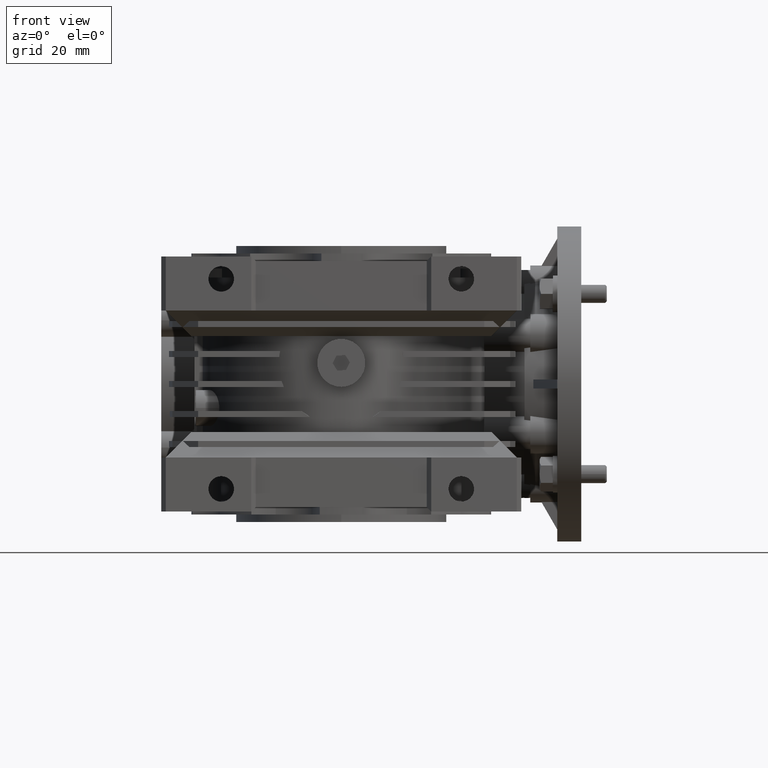
[diagram: clean part render]
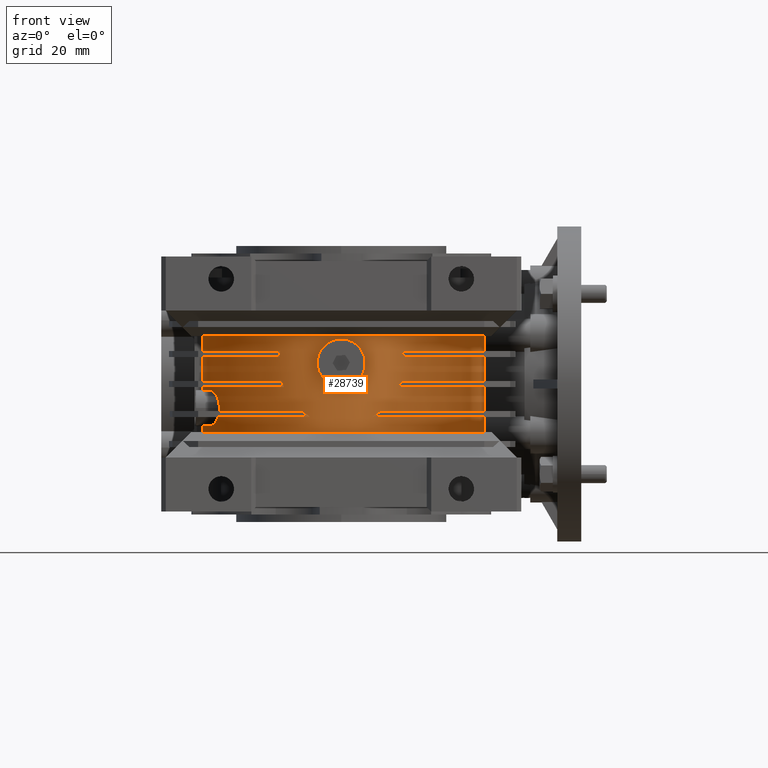
[diagram: same view with one face highlighted and labeled with its STEP entity id]
A machine part, front view. The second image highlights one B-rep face of the part: STEP entity #28739.
In plain terms, the highlighted cylindrical surface (partial cylindrical patch) has radius 47.7 mm, axis along (0, 0, 1).
Its self-contained STEP definition (entity closure, byte-faithful):
#169 = B_SPLINE_CURVE_WITH_KNOTS ( 'NONE', 3,
 ( #13322, #18079, #5207, #35517, #16388, #19097, #30081, #27201, #18268, #10632, #18937, #20976, #4202, #15386, #24513, #26381, #1685, #12492, #15199, #26175, #7074, #7941, #34672, #23516, #21644, #8270, #9968, #13700, #24702, #20801, #1495, #34502, #8098, #31785, #10983, #10820, #29075, #32628, #4386, #12666, #31968, #35327, #29913, #5378, #2506 ),
 .UNSPECIFIED., .F., .F.,
 ( 4, 2, 2, 2, 2, 2, 2, 2, 2, 1, 2, 2, 2, 2, 2, 2, 2, 2, 2, 2, 2, 2, 4 ),
 ( 0.02504967495658596763, 0.02661527734095410144, 0.02739807853313816835, 0.02818087972532223526, 0.02974648210969036907, 0.03052928330187443945, 0.03131208449405850636, 0.03287768687842664017, 0.03366048807061071402, 0.03444328926279478092, 0.03522609045497884783, 0.03600889164716292168, 0.03757449403153106243, 0.03914009641589921012, 0.04070569880026735088, 0.04148849999245142472, 0.04227130118463549857, 0.04383690356900364626, 0.04540250595337179396, 0.04618530714555586780, 0.04696810833773994165, 0.04853371072210808934, 0.05009931310647624397 ),
 .UNSPECIFIED. ) ;
#193 = CARTESIAN_POINT ( 'NONE',  ( -45.87048104999320230, -13.08392021690037943, -9.000000000000000000 ) ) ;
#196 = CARTESIAN_POINT ( 'NONE',  ( -41.99791551650658050, -22.61835074695222048, -3.199224064035422810 ) ) ;
#320 = CIRCLE ( 'NONE', #23367, 47.70000000000000284 ) ;
#391 = ORIENTED_EDGE ( 'NONE', *, *, #33442, .T. ) ;
#478 = DIRECTION ( 'NONE',  ( 0.000000000000000000, 0.000000000000000000, -1.000000000000000000 ) ) ;
#493 = EDGE_CURVE ( 'NONE', #7824, #12221, #34250, .T. ) ;
#521 = DIRECTION ( 'NONE',  ( 0.000000000000000000, 1.000000000000000000, 0.000000000000000000 ) ) ;
#614 = VERTEX_POINT ( 'NONE', #3367 ) ;
#765 = DIRECTION ( 'NONE',  ( 0.000000000000000000, 0.000000000000000000, -1.000000000000000000 ) ) ;
#812 = DIRECTION ( 'NONE',  ( 0.000000000000000000, 0.000000000000000000, 1.000000000000000000 ) ) ;
#844 = EDGE_CURVE ( 'NONE', #14769, #4228, #21139, .T. ) ;
#908 = ORIENTED_EDGE ( 'NONE', *, *, #27538, .T. ) ;
#1090 = VERTEX_POINT ( 'NONE', #3320 ) ;
#1210 = CARTESIAN_POINT ( 'NONE',  ( -1.049875436193837830, -47.69119383971483472, -0.9479598169147479547 ) ) ;
#1228 = AXIS2_PLACEMENT_3D ( 'NONE', #30808, #3226, #521 ) ;
#1382 = CARTESIAN_POINT ( 'NONE',  ( -7.177231425892447447, -47.15710864020650206, 3.456600351971304885 ) ) ;
#1421 = VERTEX_POINT ( 'NONE', #22413 ) ;
#1431 = CARTESIAN_POINT ( 'NONE',  ( 47.27663220438050473, 6.341139283420279327, -46.00000000000000000 ) ) ;
#1445 = CARTESIAN_POINT ( 'NONE',  ( -46.16589650380460341, -12.00000000000000000, 1.000000000000000000 ) ) ;
#1468 = CARTESIAN_POINT ( 'NONE',  ( -46.16589650380460341, -12.00000000000000000, -46.00000000000000000 ) ) ;
#1481 = CARTESIAN_POINT ( 'NONE',  ( 8.572718815207100257E-16, -47.70000000000000284, 15.00000000000000000 ) ) ;
#1495 = CARTESIAN_POINT ( 'NONE',  ( 6.931573580640320920, -47.19384396243441415, 2.997247145745693064 ) ) ;
#1649 = CARTESIAN_POINT ( 'NONE',  ( -42.78081155618810527, -21.09883909811702551, -13.62670126913818613 ) ) ;
#1670 = CARTESIAN_POINT ( 'NONE',  ( -20.59889316866723519, -43.02302656647541568, 9.672459075682239060 ) ) ;
#1685 = CARTESIAN_POINT ( 'NONE',  ( 6.930604030321002362, -47.19398557040879894, 11.00438007453916889 ) ) ;
#1752 = CARTESIAN_POINT ( 'NONE',  ( -2.574280531614093093, -47.63115034352004074, -0.5790603596510307538 ) ) ;
#1789 = ORIENTED_EDGE ( 'NONE', *, *, #12964, .T. ) ;
#1805 = EDGE_CURVE ( 'NONE', #29671, #22459, #4590, .T. ) ;
#1870 = ORIENTED_EDGE ( 'NONE', *, *, #18703, .T. ) ;
#1906 = DIRECTION ( 'NONE',  ( 0.000000000000000000, 1.000000000000000000, 0.000000000000000000 ) ) ;
#1980 = CIRCLE ( 'NONE', #22144, 47.70000000000000284 ) ;
#1990 = CARTESIAN_POINT ( 'NONE',  ( -44.72667564083057812, -16.57964233663948761, -13.49658631937117192 ) ) ;
#2080 = ORIENTED_EDGE ( 'NONE', *, *, #4062, .T. ) ;
#2098 = CARTESIAN_POINT ( 'NONE',  ( -3.549779499257665005, -47.56829803669745615, 14.17412369798821103 ) ) ;
#2226 = CARTESIAN_POINT ( 'NONE',  ( -45.40925070146794695, -14.60510982672442815, -3.910306775389059020 ) ) ;
#2229 = ORIENTED_EDGE ( 'NONE', *, *, #1805, .T. ) ;
#2263 = DIRECTION ( 'NONE',  ( 0.000000000000000000, 1.000000000000000000, 0.000000000000000000 ) ) ;
#2297 = CARTESIAN_POINT ( 'NONE',  ( 43.48705373157530119, 19.60135496135080402, 2.857946042203890258 ) ) ;
#2335 = CARTESIAN_POINT ( 'NONE',  ( -45.46978164852741600, -14.42079727504272135, -11.91548846988141186 ) ) ;
#2506 = CARTESIAN_POINT ( 'NONE',  ( -1.224455577971725153E-16, -47.70000000000000284, -1.000000000000000000 ) ) ;
#2548 = ORIENTED_EDGE ( 'NONE', *, *, #32799, .T. ) ;
#2629 = DIRECTION ( 'NONE',  ( 2.486899575160350019E-14, 1.000000000000000000, 0.000000000000000000 ) ) ;
#2645 = CARTESIAN_POINT ( 'NONE',  ( 43.29569480498446410, 20.01997211239888941, 5.652447748347475986 ) ) ;
#2673 = CIRCLE ( 'NONE', #16497, 47.70000000000000284 ) ;
#2924 = CARTESIAN_POINT ( 'NONE',  ( -45.21835922082179593, -15.18610509661124475, -3.363854406996485746 ) ) ;
#3097 = CARTESIAN_POINT ( 'NONE',  ( -40.63051845124010697, -24.98902960426768516, -7.582801645152420278 ) ) ;
#3211 = DIRECTION ( 'NONE',  ( 0.000000000000000000, 0.000000000000000000, -1.000000000000000000 ) ) ;
#3226 = DIRECTION ( 'NONE',  ( 0.000000000000000000, 0.000000000000000000, -1.000000000000000000 ) ) ;
#3243 = VERTEX_POINT ( 'NONE', #6737 ) ;
#3320 = CARTESIAN_POINT ( 'NONE',  ( -20.66397831977183941, -42.99174339335402806, 9.000000000000000000 ) ) ;
#3367 = CARTESIAN_POINT ( 'NONE',  ( 47.27663220438050473, 6.341139283420289985, 11.00000000000000000 ) ) ;
#3493 = VECTOR ( 'NONE', #21391, 1000.000000000000000 ) ;
#3600 = CARTESIAN_POINT ( 'NONE',  ( -46.16589650380460341, -12.00000000000000000, 11.00000000000000000 ) ) ;
#3778 = CARTESIAN_POINT ( 'NONE',  ( 47.27663220438050473, 6.341139283420289985, 1.000000000000000000 ) ) ;
#3797 = CARTESIAN_POINT ( 'NONE',  ( 10.34408043278859779, -46.56490094481037545, -11.00000000000000000 ) ) ;
#3824 = CARTESIAN_POINT ( 'NONE',  ( 20.50132002592560809, -43.06978609911058697, 10.33908972111422919 ) ) ;
#3928 = CARTESIAN_POINT ( 'NONE',  ( -6.930604030320999698, -47.19398557040882025, 2.995619925460828448 ) ) ;
#3959 = VERTEX_POINT ( 'NONE', #20696 ) ;
#4030 = CARTESIAN_POINT ( 'NONE',  ( 0.000000000000000000, 0.000000000000000000, -46.00000000000000000 ) ) ;
#4062 = EDGE_CURVE ( 'NONE', #9269, #12221, #21207, .T. ) ;
#4123 = DIRECTION ( 'NONE',  ( 0.000000000000000000, 1.000000000000000000, 0.000000000000000000 ) ) ;
#4201 = DIRECTION ( 'NONE',  ( 0.000000000000000000, 1.000000000000000000, 0.000000000000000000 ) ) ;
#4202 = CARTESIAN_POINT ( 'NONE',  ( 5.472922992452136981, -47.38535104697779587, 12.84079711506503862 ) ) ;
#4228 = VERTEX_POINT ( 'NONE', #11980 ) ;
#4238 = AXIS2_PLACEMENT_3D ( 'NONE', #17540, #20107, #4201 ) ;
#4316 = LINE ( 'NONE', #1431, #28626 ) ;
#4339 = CARTESIAN_POINT ( 'NONE',  ( -42.54610669980005611, -21.56820932260116663, -13.42855354649933020 ) ) ;
#4355 = CARTESIAN_POINT ( 'NONE',  ( 19.15724406066803454, -43.68397875651895390, -1.000000000000003775 ) ) ;
#4386 = CARTESIAN_POINT ( 'NONE',  ( 3.549779499257659676, -47.56829803669745615, -0.1741236979882150038 ) ) ;
#4590 = CIRCLE ( 'NONE', #5707, 47.70000000000000284 ) ;
#4821 = CARTESIAN_POINT ( 'NONE',  ( 42.79026630369119033, 21.07973621113990959, -9.714273915147703775 ) ) ;
#4871 = CARTESIAN_POINT ( 'NONE',  ( -44.14071354786221235, -18.08214686070057553, -13.93495187412679215 ) ) ;
#5078 = EDGE_CURVE ( 'NONE', #15460, #16884, #28513, .T. ) ;
#5157 = CARTESIAN_POINT ( 'NONE',  ( -7.292135515486078745, -47.13942154560685793, 10.30054238091678442 ) ) ;
#5207 = CARTESIAN_POINT ( 'NONE',  ( 1.049875436193836942, -47.69119383971483472, 14.94795981691475184 ) ) ;
#5302 = VERTEX_POINT ( 'NONE', #23637 ) ;
#5319 = CARTESIAN_POINT ( 'NONE',  ( -1.059517348747424759, -47.69099803140677096, 14.94679844469871810 ) ) ;
#5378 = CARTESIAN_POINT ( 'NONE',  ( 0.5294525964699646758, -47.70000000000000284, -1.000000000000000000 ) ) ;
#5707 = AXIS2_PLACEMENT_3D ( 'NONE', #17384, #23538, #15221 ) ;
#5713 = LINE ( 'NONE', #27339, #18787 ) ;
#5759 = ORIENTED_EDGE ( 'NONE', *, *, #844, .T. ) ;
#5794 = CARTESIAN_POINT ( 'NONE',  ( -44.74929917939938662, -16.52091639814252133, -2.522368223629749551 ) ) ;
#5810 = CARTESIAN_POINT ( 'NONE',  ( -19.87460691435179783, -43.36231082403244130, 1.000000000000000000 ) ) ;
#5881 = VERTEX_POINT ( 'NONE', #10429 ) ;
#5919 = CARTESIAN_POINT ( 'NONE',  ( -40.64110559239524179, -24.97188055230613557, -8.669878197415883392 ) ) ;
#5944 = EDGE_CURVE ( 'NONE', #29151, #9269, #35127, .T. ) ;
#6045 = EDGE_CURVE ( 'NONE', #3959, #28332, #5713, .T. ) ;
#6111 = VECTOR ( 'NONE', #765, 1000.000000000000000 ) ;
#6156 = CARTESIAN_POINT ( 'NONE',  ( -41.53088126843459094, -23.46434464939306608, -3.972848632099184041 ) ) ;
#6250 = B_SPLINE_CURVE_WITH_KNOTS ( 'NONE', 3,
 ( #4355, #7048, #18057, #29048 ),
 .UNSPECIFIED., .F., .F.,
 ( 4, 4 ),
 ( 7.757919228897728493E-18, 0.002148971782652232907 ),
 .UNSPECIFIED. ) ;
#6330 = CARTESIAN_POINT ( 'NONE',  ( 12.32622416806886179, -46.08944167039124551, -9.746211327142438208 ) ) ;
#6617 = CARTESIAN_POINT ( 'NONE',  ( -6.794704714547451729, -47.21380931882590914, 2.769030837270463508 ) ) ;
#6697 = VERTEX_POINT ( 'NONE', #20988 ) ;
#6731 = CARTESIAN_POINT ( 'NONE',  ( 47.27663220438050473, 6.341139283420279327, -46.00000000000000000 ) ) ;
#6737 = CARTESIAN_POINT ( 'NONE',  ( 10.34408043278859779, -46.56490094481037545, -11.00000000000000000 ) ) ;
#6879 = VERTEX_POINT ( 'NONE', #16100 ) ;
#6969 = CARTESIAN_POINT ( 'NONE',  ( -7.744133271527655182, -47.06728288228833890, 9.074206546814885144 ) ) ;
#7048 = CARTESIAN_POINT ( 'NONE',  ( 19.42980623143771268, -43.56444889280750488, -0.3473074966074514713 ) ) ;
#7074 = CARTESIAN_POINT ( 'NONE',  ( 7.729229719612524363, -47.06968223258103734, 9.080291248999118991 ) ) ;
#7106 = CARTESIAN_POINT ( 'NONE',  ( 47.27663220438050473, 6.341139283420279327, -1.000000000000000000 ) ) ;
#7134 = CARTESIAN_POINT ( 'NONE',  ( -46.16589650380460341, -12.00000000000000000, -46.00000000000000000 ) ) ;
#7175 = ORIENTED_EDGE ( 'NONE', *, *, #28799, .T. ) ;
#7221 = CARTESIAN_POINT ( 'NONE',  ( -41.26703247474129910, -23.92531704487970501, -11.46910063488336640 ) ) ;
#7341 = VERTEX_POINT ( 'NONE', #33650 ) ;
#7448 = CARTESIAN_POINT ( 'NONE',  ( -20.37154878746334674, -43.13107928165025839, 11.00000000000000000 ) ) ;
#7532 = CARTESIAN_POINT ( 'NONE',  ( -7.178786336695279324, -47.15687274392266204, 10.54030640596955060 ) ) ;
#7547 = CARTESIAN_POINT ( 'NONE',  ( 41.62261530427168310, 23.31398876121763308, 14.83202354338682660 ) ) ;
#7594 = CARTESIAN_POINT ( 'NONE',  ( -44.44337719616393656, -17.32482569331350675, -13.76723267785247806 ) ) ;
#7681 = AXIS2_PLACEMENT_3D ( 'NONE', #30034, #7893, #32248 ) ;
#7824 = VERTEX_POINT ( 'NONE', #10176 ) ;
#7874 = CARTESIAN_POINT ( 'NONE',  ( -2.584845915579094378, -47.63237866601163972, 14.58899748152374798 ) ) ;
#7893 = DIRECTION ( 'NONE',  ( 0.000000000000000000, 0.000000000000000000, -1.000000000000000000 ) ) ;
#7941 = CARTESIAN_POINT ( 'NONE',  ( 7.793935698445081606, -47.05897675589517348, 8.823157503436959814 ) ) ;
#7992 = CARTESIAN_POINT ( 'NONE',  ( -45.26893830614052661, -15.03451360168745587, -3.492819287540572137 ) ) ;
#8031 = CARTESIAN_POINT ( 'NONE',  ( 0.000000000000000000, 0.000000000000000000, -16.00000000000000000 ) ) ;
#8062 = CARTESIAN_POINT ( 'NONE',  ( 43.35213794904172602, 19.89708206975852178, 4.956127624126582809 ) ) ;
#8098 = CARTESIAN_POINT ( 'NONE',  ( 6.363736907234189388, -47.27449723920417313, 2.124158546976230966 ) ) ;
#8270 = CARTESIAN_POINT ( 'NONE',  ( 7.948368870306209644, -47.03322389917664736, 5.952447983354264949 ) ) ;
#8461 = EDGE_CURVE ( 'NONE', #4228, #22346, #29691, .T. ) ;
#8689 = CARTESIAN_POINT ( 'NONE',  ( -44.02043975068518478, -18.37540342729000997, -2.020447574572437954 ) ) ;
#8749 = EDGE_LOOP ( 'NONE', ( #24191, #7175, #2548, #23735 ) ) ;
#8916 = VERTEX_POINT ( 'NONE', #24099 ) ;
#9048 = AXIS2_PLACEMENT_3D ( 'NONE', #29659, #18488, #2263 ) ;
#9053 = CARTESIAN_POINT ( 'NONE',  ( -43.27404168294849285, -20.06708200083851779, -2.092715451488291301 ) ) ;
#9269 = VERTEX_POINT ( 'NONE', #16374 ) ;
#9329 = CARTESIAN_POINT ( 'NONE',  ( -6.356058026034176578, -47.27555115045270639, 2.113592810138205991 ) ) ;
#9495 = CARTESIAN_POINT ( 'NONE',  ( -7.948463749962426661, -47.03320988353922161, 5.951538350308516634 ) ) ;
#9586 = CARTESIAN_POINT ( 'NONE',  ( -1.224455577971725153E-16, -47.70000000000000284, -1.000000000000000000 ) ) ;
#9696 = CARTESIAN_POINT ( 'NONE',  ( -8.000401502705237533, -47.02428708617878783, 7.516494892267710171 ) ) ;
#9779 = DIRECTION ( 'NONE',  ( 0.000000000000000000, 0.000000000000000000, 1.000000000000000000 ) ) ;
#9968 = CARTESIAN_POINT ( 'NONE',  ( 7.744133271527657847, -47.06728288228834600, 4.925793453185125514 ) ) ;
#10137 = EDGE_CURVE ( 'NONE', #1421, #11314, #35490, .T. ) ;
#10145 = EDGE_CURVE ( 'NONE', #29609, #29671, #6250, .T. ) ;
#10176 = CARTESIAN_POINT ( 'NONE',  ( 41.20282071072024621, 24.03367565480241907, 16.00000000000000000 ) ) ;
#10306 = CARTESIAN_POINT ( 'NONE',  ( -41.45287981314159254, -23.60351356450999560, -11.88290689563745417 ) ) ;
#10352 = CARTESIAN_POINT ( 'NONE',  ( -45.83443625646069108, -13.20992098214235000, -6.374372472100242604 ) ) ;
#10426 = CARTESIAN_POINT ( 'NONE',  ( 42.41648176143597482, 21.82277382183808712, -11.69533136178148069 ) ) ;
#10429 = CARTESIAN_POINT ( 'NONE',  ( -41.10761739552838634, -24.19615242270664268, -10.99999999999999645 ) ) ;
#10438 = ORIENTED_EDGE ( 'NONE', *, *, #23703, .T. ) ;
#10595 = CARTESIAN_POINT ( 'NONE',  ( 41.20282071072025332, 24.03367565480241197, -15.99999999999999289 ) ) ;
#10632 = CARTESIAN_POINT ( 'NONE',  ( 4.660956587456301037, -47.47223479398075341, 13.50720493441820835 ) ) ;
#10684 = CARTESIAN_POINT ( 'NONE',  ( -45.89433516241410160, -13.00000000000000000, -8.000000000000000000 ) ) ;
#10731 = DIRECTION ( 'NONE',  ( 0.000000000000000000, 0.000000000000000000, 1.000000000000000000 ) ) ;
#10750 = CARTESIAN_POINT ( 'NONE',  ( -4.236450803457417535, -47.51199496866087202, 13.79118892413560893 ) ) ;
#10797 = DIRECTION ( 'NONE',  ( 0.000000000000000000, 0.000000000000000000, -1.000000000000000000 ) ) ;
#10820 = CARTESIAN_POINT ( 'NONE',  ( 4.885243225213987017, -47.45116567460895141, 0.6434719945421814025 ) ) ;
#10911 = EDGE_CURVE ( 'NONE', #8916, #12231, #34147, .T. ) ;
#10941 = CARTESIAN_POINT ( 'NONE',  ( 43.15811474462046959, 20.31486164653260218, 7.038806619352275362 ) ) ;
#10958 = VERTEX_POINT ( 'NONE', #9586 ) ;
#10983 = CARTESIAN_POINT ( 'NONE',  ( 5.288044328429688967, -47.40745810560817830, 0.9738938855883068069 ) ) ;
#11209 = CARTESIAN_POINT ( 'NONE',  ( -41.01880107164662093, -24.34713503555870773, -5.248279812198323846 ) ) ;
#11312 = CARTESIAN_POINT ( 'NONE',  ( 13.22875655532295980, -45.82892099973552291, -9.000000000000005329 ) ) ;
#11314 = VERTEX_POINT ( 'NONE', #3600 ) ;
#11339 = CARTESIAN_POINT ( 'NONE',  ( -40.62376151958358861, -24.99999999999999645, -8.000000000000000000 ) ) ;
#11343 = ORIENTED_EDGE ( 'NONE', *, *, #6045, .T. ) ;
#11399 = CARTESIAN_POINT ( 'NONE',  ( -44.87670808027822744, -16.17089958410854322, -2.694090909817181245 ) ) ;
#11587 = CIRCLE ( 'NONE', #1228, 47.70000000000000284 ) ;
#11660 = EDGE_CURVE ( 'NONE', #12775, #28332, #22875, .T. ) ;
#11662 = ORIENTED_EDGE ( 'NONE', *, *, #23839, .T. ) ;
#11731 = CARTESIAN_POINT ( 'NONE',  ( -42.49887848956241498, -21.66300418046188980, -2.610206837943113367 ) ) ;
#11803 = B_SPLINE_CURVE_WITH_KNOTS ( 'NONE', 3,
 ( #22927, #23455, #20387, #31361 ),
 .UNSPECIFIED., .F., .F.,
 ( 4, 4 ),
 ( 4.336808689942017736E-19, 0.002148971782652232907 ),
 .UNSPECIFIED. ) ;
#11878 = DIRECTION ( 'NONE',  ( 0.000000000000000000, 0.000000000000000000, 1.000000000000000000 ) ) ;
#11980 = CARTESIAN_POINT ( 'NONE',  ( -13.22875655532295092, -45.82892099973550870, -9.000000000000000000 ) ) ;
#12008 = DIRECTION ( 'NONE',  ( 0.000000000000000000, 1.000000000000000000, 0.000000000000000000 ) ) ;
#12032 = CARTESIAN_POINT ( 'NONE',  ( -5.279391021386893534, -47.40738147093842514, 0.9835900648671406232 ) ) ;
#12055 = ORIENTED_EDGE ( 'NONE', *, *, #31909, .T. ) ;
#12221 = VERTEX_POINT ( 'NONE', #35354 ) ;
#12228 = EDGE_CURVE ( 'NONE', #26842, #1090, #19841, .T. ) ;
#12231 = VERTEX_POINT ( 'NONE', #31955 ) ;
#12399 = CIRCLE ( 'NONE', #27945, 47.70000000000000284 ) ;
#12492 = CARTESIAN_POINT ( 'NONE',  ( 7.177231425892454553, -47.15710864020648785, 10.54339964802869112 ) ) ;
#12633 = CARTESIAN_POINT ( 'NONE',  ( -41.76037629422506114, -23.05222865826461742, -12.43246756060808700 ) ) ;
#12666 = CARTESIAN_POINT ( 'NONE',  ( 3.310377152988809524, -47.58560848147654809, -0.2876594939963171838 ) ) ;
#12738 = CARTESIAN_POINT ( 'NONE',  ( -1.817557848159217171, -47.66604698882411384, -0.7951625633657259939 ) ) ;
#12775 = VERTEX_POINT ( 'NONE', #193 ) ;
#12964 = EDGE_CURVE ( 'NONE', #5881, #6879, #27769, .T. ) ;
#12983 = CARTESIAN_POINT ( 'NONE',  ( -43.92787568570803103, -18.59323439714972181, -13.99171510319547806 ) ) ;
#13013 = AXIS2_PLACEMENT_3D ( 'NONE', #4030, #25473, #14857 ) ;
#13080 = CARTESIAN_POINT ( 'NONE',  ( 19.87460691435179783, -43.36231082403242709, 0.9999999999999986677 ) ) ;
#13103 = CARTESIAN_POINT ( 'NONE',  ( -3.310377152988802418, -47.58560848147654099, 14.28765949399631552 ) ) ;
#13220 = CARTESIAN_POINT ( 'NONE',  ( -45.36438414837716238, -14.74401659802886222, -3.766046099434448902 ) ) ;
#13288 = CARTESIAN_POINT ( 'NONE',  ( 42.55810644958621225, 21.55219564432118773, 11.08538060759800281 ) ) ;
#13322 = CARTESIAN_POINT ( 'NONE',  ( 8.572718815207100257E-16, -47.70000000000000284, 15.00000000000000000 ) ) ;
#13376 = CARTESIAN_POINT ( 'NONE',  ( -45.64195828060948656, -13.86224844571226633, -4.874436940451476019 ) ) ;
#13483 = DIRECTION ( 'NONE',  ( 0.000000000000000000, 0.000000000000000000, -1.000000000000000000 ) ) ;
#13625 = CARTESIAN_POINT ( 'NONE',  ( -4.012699873245087367, -47.53148590491027647, 13.92583749842897767 ) ) ;
#13644 = CIRCLE ( 'NONE', #26302, 47.70000000000000284 ) ;
#13649 = CARTESIAN_POINT ( 'NONE',  ( 42.55012026285886861, 21.56036722062729183, -11.04246633185722182 ) ) ;
#13680 = CIRCLE ( 'NONE', #33834, 47.70000000000000284 ) ;
#13700 = CARTESIAN_POINT ( 'NONE',  ( 7.592982551141991721, -47.09222687557476661, 4.426695215133191752 ) ) ;
#13867 = CARTESIAN_POINT ( 'NONE',  ( -40.67528694726338045, -24.91607978309960814, -9.000000000000001776 ) ) ;
#14220 = DIRECTION ( 'NONE',  ( 0.000000000000000000, 1.000000000000000000, 0.000000000000000000 ) ) ;
#14287 = CARTESIAN_POINT ( 'NONE',  ( -44.32660002361322427, -17.62404883407832656, -2.147485456995728459 ) ) ;
#14325 = DIRECTION ( 'NONE',  ( 1.776356839400249873E-15, 1.000000000000000000, 0.000000000000000000 ) ) ;
#14376 = EDGE_CURVE ( 'NONE', #7824, #1421, #30692, .T. ) ;
#14521 = CARTESIAN_POINT ( 'NONE',  ( -46.16589650380460341, -12.00000000000000000, -9.000000000000000000 ) ) ;
#14733 = CARTESIAN_POINT ( 'NONE',  ( -2.071277721376298064, -47.65567344926926552, -0.7316805929636779338 ) ) ;
#14769 = VERTEX_POINT ( 'NONE', #29478 ) ;
#14857 = DIRECTION ( 'NONE',  ( 0.000000000000000000, 1.000000000000000000, 0.000000000000000000 ) ) ;
#14919 = LINE ( 'NONE', #7134, #34112 ) ;
#14928 = CARTESIAN_POINT ( 'NONE',  ( -7.400246187802232534, -47.12278317756641144, 3.927632353035431123 ) ) ;
#15002 = EDGE_CURVE ( 'NONE', #17837, #29609, #16824, .T. ) ;
#15022 = DIRECTION ( 'NONE',  ( 0.000000000000000000, 0.000000000000000000, -1.000000000000000000 ) ) ;
#15090 = CARTESIAN_POINT ( 'NONE',  ( -4.872872857144088243, -47.45088932365636936, 0.6498607745676691083 ) ) ;
#15199 = CARTESIAN_POINT ( 'NONE',  ( 7.400245941658186943, -47.12278388569210108, 10.07236749815391086 ) ) ;
#15221 = DIRECTION ( 'NONE',  ( 0.000000000000000000, 1.000000000000000000, 0.000000000000000000 ) ) ;
#15273 = CARTESIAN_POINT ( 'NONE',  ( -4.660956587456301037, -47.47223479398073920, 0.4927950655817948666 ) ) ;
#15341 = CARTESIAN_POINT ( 'NONE',  ( -42.20170515475150808, -22.23437295113081902, -13.05997276374256266 ) ) ;
#15368 = EDGE_CURVE ( 'NONE', #3243, #19790, #31590, .T. ) ;
#15378 = CARTESIAN_POINT ( 'NONE',  ( 0.000000000000000000, 0.000000000000000000, -9.000000000000000000 ) ) ;
#15386 = CARTESIAN_POINT ( 'NONE',  ( 6.025252013838128917, -47.31938141899432537, 12.28843325119952823 ) ) ;
#15460 = VERTEX_POINT ( 'NONE', #1445 ) ;
#15529 = CARTESIAN_POINT ( 'NONE',  ( -42.43016487242210388, -21.79523726408217144, -13.31518027862741071 ) ) ;
#15655 = ORIENTED_EDGE ( 'NONE', *, *, #12228, .T. ) ;
#15827 = CARTESIAN_POINT ( 'NONE',  ( 41.97381897690034691, 22.66923134302817289, -13.60979381356447426 ) ) ;
#15878 = CARTESIAN_POINT ( 'NONE',  ( -44.98195031552683787, -15.87372287398832249, -13.12803497155126742 ) ) ;
#15885 = CIRCLE ( 'NONE', #26818, 47.70000000000000284 ) ;
#15924 = CARTESIAN_POINT ( 'NONE',  ( -45.79793206362221270, -13.33673017517177506, -5.976599593873318739 ) ) ;
#15929 = VERTEX_POINT ( 'NONE', #35252 ) ;
#16017 = DIRECTION ( 'NONE',  ( 0.000000000000000000, 0.000000000000000000, -1.000000000000000000 ) ) ;
#16100 = CARTESIAN_POINT ( 'NONE',  ( -45.65899464577436362, -13.80384757729336087, -10.99999999999999645 ) ) ;
#16343 = CARTESIAN_POINT ( 'NONE',  ( 42.89594182724816562, 20.86322167749465706, -9.043940804891207108 ) ) ;
#16374 = CARTESIAN_POINT ( 'NONE',  ( -46.16589650380460341, -12.00000000000000000, -16.00000000000000000 ) ) ;
#16388 = CARTESIAN_POINT ( 'NONE',  ( 2.071277721376298508, -47.65567344926924420, 14.73168059296367538 ) ) ;
#16448 = ORIENTED_EDGE ( 'NONE', *, *, #10137, .T. ) ;
#16497 = AXIS2_PLACEMENT_3D ( 'NONE', #24725, #35546, #19126 ) ;
#16538 = CARTESIAN_POINT ( 'NONE',  ( 43.53229869214881376, 19.49946078583834819, -0.6882176728243453168 ) ) ;
#16634 = CARTESIAN_POINT ( 'NONE',  ( -43.86119653592265877, -18.75249330484187027, -1.993175632930001218 ) ) ;
#16798 = CARTESIAN_POINT ( 'NONE',  ( -43.01786280884097380, -20.61347456843457593, -2.209024369641817476 ) ) ;
#16824 = CIRCLE ( 'NONE', #4238, 47.70000000000000284 ) ;
#16884 = VERTEX_POINT ( 'NONE', #5810 ) ;
#17200 = LINE ( 'NONE', #6731, #6111 ) ;
#17384 = CARTESIAN_POINT ( 'NONE',  ( 0.000000000000000000, 0.000000000000000000, 1.000000000000000000 ) ) ;
#17426 = ORIENTED_EDGE ( 'NONE', *, *, #10145, .T. ) ;
#17435 = CARTESIAN_POINT ( 'NONE',  ( -4.009330651073539364, -47.53320563890380157, 0.05750785344067417537 ) ) ;
#17460 = EDGE_CURVE ( 'NONE', #10958, #24750, #31825, .T. ) ;
#17521 = CARTESIAN_POINT ( 'NONE',  ( 20.59889316866723163, -43.02302656647541568, 9.672459075682240837 ) ) ;
#17540 = CARTESIAN_POINT ( 'NONE',  ( 0.000000000000000000, 0.000000000000000000, -1.000000000000000000 ) ) ;
#17556 = EDGE_CURVE ( 'NONE', #22346, #5881, #320, .T. ) ;
#17717 = CARTESIAN_POINT ( 'NONE',  ( 20.66397831977182520, -42.99174339335403516, 9.000000000000000000 ) ) ;
#17731 = DIRECTION ( 'NONE',  ( 0.000000000000000000, 1.000000000000000000, 0.000000000000000000 ) ) ;
#17837 = VERTEX_POINT ( 'NONE', #7106 ) ;
#17959 = CARTESIAN_POINT ( 'NONE',  ( 19.15724406066803454, -43.68397875651895390, -1.000000000000003775 ) ) ;
#18057 = CARTESIAN_POINT ( 'NONE',  ( 19.66907569237002562, -43.45651365058589732, 0.3191912924143162078 ) ) ;
#18079 = CARTESIAN_POINT ( 'NONE',  ( 0.5294533744213468784, -47.70000000000000284, 15.00000000000001066 ) ) ;
#18268 = CARTESIAN_POINT ( 'NONE',  ( 4.009330651073540253, -47.53320563890380157, 13.94249214655932967 ) ) ;
#18346 = CARTESIAN_POINT ( 'NONE',  ( 8.572718815207100257E-16, -47.70000000000000284, 15.00000000000000000 ) ) ;
#18405 = CARTESIAN_POINT ( 'NONE',  ( -45.57457591490831561, -14.08307946239160913, -11.48364381208339147 ) ) ;
#18424 = CARTESIAN_POINT ( 'NONE',  ( -20.50132002592560809, -43.06978609911057987, 10.33908972111422919 ) ) ;
#18488 = DIRECTION ( 'NONE',  ( 0.000000000000000000, 0.000000000000000000, 1.000000000000000000 ) ) ;
#18512 = CARTESIAN_POINT ( 'NONE',  ( -6.931573580640319143, -47.19384396243441415, 11.00275285425431271 ) ) ;
#18529 = CARTESIAN_POINT ( 'NONE',  ( 43.07652341465038148, 20.48780315292942689, 7.731839880770568385 ) ) ;
#18549 = ORIENTED_EDGE ( 'NONE', *, *, #17556, .T. ) ;
#18577 = CARTESIAN_POINT ( 'NONE',  ( -45.06036210157277822, -15.64946533113749361, -12.98456656609976889 ) ) ;
#18680 = DIRECTION ( 'NONE',  ( 0.000000000000000000, 0.000000000000000000, -1.000000000000000000 ) ) ;
#18703 = EDGE_CURVE ( 'NONE', #614, #6697, #4316, .T. ) ;
#18748 = VECTOR ( 'NONE', #10797, 1000.000000000000000 ) ;
#18751 = CARTESIAN_POINT ( 'NONE',  ( -44.81525470580329085, -16.33841723431863713, -13.38389529239793241 ) ) ;
#18775 = CARTESIAN_POINT ( 'NONE',  ( -20.66397831977183941, -42.99174339335402806, 9.000000000000000000 ) ) ;
#18787 = VECTOR ( 'NONE', #478, 1000.000000000000000 ) ;
#18844 = LINE ( 'NONE', #23908, #3493 ) ;
#18937 = CARTESIAN_POINT ( 'NONE',  ( 4.872872857144088243, -47.45088932365636936, 13.35013922543233278 ) ) ;
#19097 = CARTESIAN_POINT ( 'NONE',  ( 2.574280531614096201, -47.63115034352004074, 14.57906035965103086 ) ) ;
#19126 = DIRECTION ( 'NONE',  ( 0.000000000000000000, 1.000000000000000000, 0.000000000000000000 ) ) ;
#19243 = EDGE_CURVE ( 'NONE', #12775, #5302, #32308, .T. ) ;
#19339 = EDGE_LOOP ( 'NONE', ( #11662, #28123 ) ) ;
#19466 = CARTESIAN_POINT ( 'NONE',  ( 0.000000000000000000, 0.000000000000000000, -9.000000000000000000 ) ) ;
#19514 = EDGE_CURVE ( 'NONE', #11314, #26842, #2673, .T. ) ;
#19695 = CARTESIAN_POINT ( 'NONE',  ( -43.52820921697804835, -19.50966322503234451, -2.018735795795836285 ) ) ;
#19790 = VERTEX_POINT ( 'NONE', #11312 ) ;
#19841 = B_SPLINE_CURVE_WITH_KNOTS ( 'NONE', 3,
 ( #7448, #18424, #1670, #18775 ),
 .UNSPECIFIED., .F., .F.,
 ( 4, 4 ),
 ( 0.000000000000000000, 0.002026062565947425124 ),
 .UNSPECIFIED. ) ;
#19868 = CARTESIAN_POINT ( 'NONE',  ( -44.47471005943992850, -17.24646690805287363, -2.248876016121190702 ) ) ;
#20072 = CARTESIAN_POINT ( 'NONE',  ( -42.84551577189166238, -20.96907726233757074, -2.319841874572695861 ) ) ;
#20105 = CARTESIAN_POINT ( 'NONE',  ( 0.000000000000000000, 0.000000000000000000, 9.000000000000000000 ) ) ;
#20107 = DIRECTION ( 'NONE',  ( 0.000000000000000000, 0.000000000000000000, -1.000000000000000000 ) ) ;
#20155 = ORIENTED_EDGE ( 'NONE', *, *, #27147, .T. ) ;
#20255 = CARTESIAN_POINT ( 'NONE',  ( -45.89433516241410160, -13.00000000000000000, -8.000000000000000000 ) ) ;
#20387 = CARTESIAN_POINT ( 'NONE',  ( -19.42980623143771624, -43.56444889280750488, -0.3473074966074472525 ) ) ;
#20522 = CARTESIAN_POINT ( 'NONE',  ( -7.948368870306206091, -47.03322389917664736, 8.047552016645742157 ) ) ;
#20597 = CARTESIAN_POINT ( 'NONE',  ( 13.22875655532295980, -45.82892099973552291, -9.000000000000005329 ) ) ;
#20696 = CARTESIAN_POINT ( 'NONE',  ( -46.16589650380460341, -12.00000000000000000, -1.000000000000000000 ) ) ;
#20739 = ORIENTED_EDGE ( 'NONE', *, *, #493, .F. ) ;
#20801 = CARTESIAN_POINT ( 'NONE',  ( 7.178786336695281101, -47.15687274392264783, 3.459693594030452068 ) ) ;
#20976 = CARTESIAN_POINT ( 'NONE',  ( 5.279391021386893534, -47.40738147093843224, 13.01640993513286659 ) ) ;
#20988 = CARTESIAN_POINT ( 'NONE',  ( 47.27663220438050473, 6.341139283420289985, 9.000000000000000000 ) ) ;
#21052 = CARTESIAN_POINT ( 'NONE',  ( -6.363736907234181395, -47.27449723920417313, 11.87584145302377969 ) ) ;
#21139 = CIRCLE ( 'NONE', #9048, 47.70000000000000284 ) ;
#21207 = CIRCLE ( 'NONE', #35557, 47.70000000000000284 ) ;
#21310 = ORIENTED_EDGE ( 'NONE', *, *, #5944, .T. ) ;
#21391 = DIRECTION ( 'NONE',  ( 0.000000000000000000, 0.000000000000000000, -1.000000000000000000 ) ) ;
#21477 = CARTESIAN_POINT ( 'NONE',  ( -43.25002092051894920, -20.12506637117632025, -13.91529584188248592 ) ) ;
#21490 = ORIENTED_EDGE ( 'NONE', *, *, #15002, .T. ) ;
#21581 = CARTESIAN_POINT ( 'NONE',  ( 0.000000000000000000, 0.000000000000000000, -11.00000000000000000 ) ) ;
#21644 = CARTESIAN_POINT ( 'NONE',  ( 8.000401502705232204, -47.02428708617878783, 6.483505107732289829 ) ) ;
#21648 = CARTESIAN_POINT ( 'NONE',  ( -45.27747038084076081, -15.00943987013658365, -12.48892712554484419 ) ) ;
#21695 = CARTESIAN_POINT ( 'NONE',  ( -45.89433516241411581, -13.00000000000000178, -7.584250100340289791 ) ) ;
#21717 = EDGE_LOOP ( 'NONE', ( #20155, #1870, #27170, #28043 ) ) ;
#21903 = FACE_BOUND ( 'NONE', #19339, .T. ) ;
#22144 = AXIS2_PLACEMENT_3D ( 'NONE', #34173, #812, #12008 ) ;
#22226 = CARTESIAN_POINT ( 'NONE',  ( -40.82648831287293945, -24.66825648143573702, -5.991347331887239669 ) ) ;
#22346 = VERTEX_POINT ( 'NONE', #26723 ) ;
#22371 = CARTESIAN_POINT ( 'NONE',  ( -40.62376151958358861, -24.99999999999999645, -8.336565824167397665 ) ) ;
#22413 = CARTESIAN_POINT ( 'NONE',  ( -46.16589650380460341, -12.00000000000000000, 16.00000000000000000 ) ) ;
#22419 = CARTESIAN_POINT ( 'NONE',  ( -40.75230323423403433, -24.79010358837214767, -6.375454721895265742 ) ) ;
#22459 = VERTEX_POINT ( 'NONE', #3778 ) ;
#22592 = B_SPLINE_CURVE_WITH_KNOTS ( 'NONE', 3,
 ( #10684, #21695, #29620, #10352, #15924, #27093, #13376, #24383, #32686, #2226, #13220, #7992, #2924, #27626, #30498, #11399, #5794, #19868, #14287, #8689, #16634, #30319, #19695, #24912, #9053, #16798, #20072, #11731, #30857, #196, #27797, #6156, #25276, #30672, #11209, #22226, #22419, #33398, #33222, #3097, #27972, #22749 ),
 .UNSPECIFIED., .F., .F.,
 ( 4, 2, 2, 2, 2, 2, 2, 2, 2, 2, 2, 2, 2, 2, 2, 2, 2, 2, 2, 2, 4 ),
 ( -0.01990580945121634207, -0.01866169636051532438, -0.01741758326981430322, -0.01617347017911328552, -0.01555141363376277841, -0.01492935708841227130, -0.01430730054306176419, -0.01368524399771125707, -0.01244113090701024632, -0.01119701781630923730, -0.009952904725608228281, -0.009330848180257712496, -0.008708791634907200180, -0.007464678544206172078, -0.006220565453505145712, -0.004976452362804117610, -0.003732339272103091243, -0.002488226181402063142, -0.001244113090701035040, -0.0006220565453505244591, -1.040834085586084257E-17 ),
 .UNSPECIFIED. ) ;
#22713 = ORIENTED_EDGE ( 'NONE', *, *, #35402, .T. ) ;
#22749 = CARTESIAN_POINT ( 'NONE',  ( -40.62376151958358861, -24.99999999999999645, -8.000000000000000000 ) ) ;
#22776 = CARTESIAN_POINT ( 'NONE',  ( -45.87048104999320230, -13.08392021690037943, -9.000000000000000000 ) ) ;
#22875 = CIRCLE ( 'NONE', #26907, 47.70000000000000284 ) ;
#22927 = CARTESIAN_POINT ( 'NONE',  ( -19.87460691435179783, -43.36231082403244130, 1.000000000000000000 ) ) ;
#23168 = ORIENTED_EDGE ( 'NONE', *, *, #8461, .T. ) ;
#23220 = CARTESIAN_POINT ( 'NONE',  ( -7.729229719612523475, -47.06968223258104445, 4.919708751000882785 ) ) ;
#23367 = AXIS2_PLACEMENT_3D ( 'NONE', #21581, #18680, #35637 ) ;
#23452 = DIRECTION ( 'NONE',  ( 0.000000000000000000, 0.000000000000000000, -1.000000000000000000 ) ) ;
#23455 = CARTESIAN_POINT ( 'NONE',  ( -19.66907569237002562, -43.45651365058589732, 0.3191912924143137098 ) ) ;
#23516 = CARTESIAN_POINT ( 'NONE',  ( 7.999593720328908475, -47.02442450979621213, 7.528858665336148448 ) ) ;
#23538 = DIRECTION ( 'NONE',  ( 0.000000000000000000, 0.000000000000000000, 1.000000000000000000 ) ) ;
#23637 = CARTESIAN_POINT ( 'NONE',  ( -45.89433516241410160, -13.00000000000000000, -8.000000000000000000 ) ) ;
#23703 = EDGE_CURVE ( 'NONE', #16884, #33549, #11803, .T. ) ;
#23735 = ORIENTED_EDGE ( 'NONE', *, *, #15368, .T. ) ;
#23839 = EDGE_CURVE ( 'NONE', #24750, #10958, #169, .T. ) ;
#23908 = CARTESIAN_POINT ( 'NONE',  ( 47.27663220438050473, 6.341139283420279327, -46.00000000000000000 ) ) ;
#23928 = CARTESIAN_POINT ( 'NONE',  ( -5.288044328429682750, -47.40745810560818541, 13.02610611441169830 ) ) ;
#23946 = CARTESIAN_POINT ( 'NONE',  ( 41.97205317884741049, 22.67236894586478968, 13.61483811300571745 ) ) ;
#24010 = ORIENTED_EDGE ( 'NONE', *, *, #29071, .T. ) ;
#24099 = CARTESIAN_POINT ( 'NONE',  ( 20.66397831977182520, -42.99174339335403516, 9.000000000000000000 ) ) ;
#24105 = EDGE_CURVE ( 'NONE', #6879, #29151, #12399, .T. ) ;
#24191 = ORIENTED_EDGE ( 'NONE', *, *, #25913, .T. ) ;
#24297 = CARTESIAN_POINT ( 'NONE',  ( 42.79466968948931083, 21.07353876955496474, 9.773140918457302817 ) ) ;
#24352 = CARTESIAN_POINT ( 'NONE',  ( -13.22875655532295092, -45.82892099973550870, -9.000000000000000000 ) ) ;
#24383 = CARTESIAN_POINT ( 'NONE',  ( -45.53311336612286908, -14.21410071382254792, -4.375558402903112487 ) ) ;
#24495 = DIRECTION ( 'NONE',  ( 1.252331571777175820E-13, 1.000000000000000000, 0.000000000000000000 ) ) ;
#24513 = CARTESIAN_POINT ( 'NONE',  ( 6.356058026034177466, -47.27555115045270639, 11.88640718986179934 ) ) ;
#24702 = CARTESIAN_POINT ( 'NONE',  ( 7.292135515486086739, -47.13942154560685793, 3.699457619083221793 ) ) ;
#24725 = CARTESIAN_POINT ( 'NONE',  ( 0.000000000000000000, 0.000000000000000000, 11.00000000000000000 ) ) ;
#24750 = VERTEX_POINT ( 'NONE', #1481 ) ;
#24912 = CARTESIAN_POINT ( 'NONE',  ( -43.35905001960668415, -19.88277491167761468, -2.062324820373125700 ) ) ;
#25276 = CARTESIAN_POINT ( 'NONE',  ( -41.38853805084011128, -23.71379023245057738, -4.267673695296500647 ) ) ;
#25345 = EDGE_CURVE ( 'NONE', #6697, #8916, #13644, .T. ) ;
#25473 = DIRECTION ( 'NONE',  ( 0.000000000000000000, 0.000000000000000000, 1.000000000000000000 ) ) ;
#25640 = CARTESIAN_POINT ( 'NONE',  ( -45.89433516241410160, -13.00000000000000000, -8.335870540494665804 ) ) ;
#25683 = VECTOR ( 'NONE', #16017, 1000.000000000000000 ) ;
#25799 = VERTEX_POINT ( 'NONE', #31231 ) ;
#25802 = CARTESIAN_POINT ( 'NONE',  ( 11.36556051002107459, -46.33798599674878460, -10.41298488447868920 ) ) ;
#25845 = FACE_BOUND ( 'NONE', #21717, .T. ) ;
#25848 = CARTESIAN_POINT ( 'NONE',  ( 0.000000000000000000, 0.000000000000000000, -1.000000000000000000 ) ) ;
#25905 = CARTESIAN_POINT ( 'NONE',  ( -7.576603773200874414, -47.09449068414071604, 4.418589725920708311 ) ) ;
#25913 = EDGE_CURVE ( 'NONE', #19790, #15929, #13680, .T. ) ;
#25965 = CARTESIAN_POINT ( 'NONE',  ( -19.15724406066800967, -43.68397875651896101, -1.000000000000003553 ) ) ;
#25999 = DIRECTION ( 'NONE',  ( 1.776356839400249873E-15, 1.000000000000000000, 0.000000000000000000 ) ) ;
#26033 = EDGE_LOOP ( 'NONE', ( #23168, #18549, #1789, #27400, #21310, #2080, #20739, #32894, #16448, #30188, #15655, #29809, #22713, #29203, #10438, #908, #11343, #31760, #32133, #391, #24010, #5759 ) ) ;
#26175 = CARTESIAN_POINT ( 'NONE',  ( 7.576603773200873526, -47.09449068414070183, 9.581410274079294354 ) ) ;
#26302 = AXIS2_PLACEMENT_3D ( 'NONE', #27375, #3211, #14220 ) ;
#26336 = CARTESIAN_POINT ( 'NONE',  ( -43.47984267259577962, -19.62419503098903562, -13.98961957550204538 ) ) ;
#26381 = CARTESIAN_POINT ( 'NONE',  ( 6.794704714547449953, -47.21380931882590914, 11.23096916272953827 ) ) ;
#26514 = CARTESIAN_POINT ( 'NONE',  ( -44.53993353192831961, -17.07496339270931784, -13.68900926748032987 ) ) ;
#26621 = CARTESIAN_POINT ( 'NONE',  ( -0.5294541523738722777, -47.70000000000001705, 15.00000000000001421 ) ) ;
#26686 = CARTESIAN_POINT ( 'NONE',  ( -42.08918387204822409, -22.44648262493601720, -12.91814480793997788 ) ) ;
#26723 = CARTESIAN_POINT ( 'NONE',  ( -10.34408043278860490, -46.56490094481034703, -11.00000000000000000 ) ) ;
#26818 = AXIS2_PLACEMENT_3D ( 'NONE', #20105, #15022, #25999 ) ;
#26821 = CARTESIAN_POINT ( 'NONE',  ( 41.62257820423005938, 23.31405236473737475, -14.83212676523826445 ) ) ;
#26842 = VERTEX_POINT ( 'NONE', #32412 ) ;
#26877 = CARTESIAN_POINT ( 'NONE',  ( -42.89938753180980768, -20.85679028309475314, -13.71108174111884281 ) ) ;
#26907 = AXIS2_PLACEMENT_3D ( 'NONE', #19466, #13483, #24495 ) ;
#27093 = CARTESIAN_POINT ( 'NONE',  ( -45.70161784229387791, -13.66312847287980148, -5.227893108962560653 ) ) ;
#27147 = EDGE_CURVE ( 'NONE', #12231, #614, #1980, .T. ) ;
#27170 = ORIENTED_EDGE ( 'NONE', *, *, #25345, .T. ) ;
#27183 = VERTEX_POINT ( 'NONE', #31659 ) ;
#27201 = CARTESIAN_POINT ( 'NONE',  ( 3.550242581359039473, -47.57017063164133219, 14.18822081474108643 ) ) ;
#27283 = FACE_OUTER_BOUND ( 'NONE', #26033, .T. ) ;
#27317 = DIRECTION ( 'NONE',  ( 0.000000000000000000, 0.000000000000000000, -1.000000000000000000 ) ) ;
#27336 = CARTESIAN_POINT ( 'NONE',  ( 43.53156191420112009, 19.50110557772840281, 1.446921801042849287 ) ) ;
#27339 = CARTESIAN_POINT ( 'NONE',  ( -46.16589650380460341, -12.00000000000000000, -46.00000000000000000 ) ) ;
#27375 = CARTESIAN_POINT ( 'NONE',  ( 0.000000000000000000, 0.000000000000000000, 9.000000000000000000 ) ) ;
#27400 = ORIENTED_EDGE ( 'NONE', *, *, #24105, .T. ) ;
#27536 = CARTESIAN_POINT ( 'NONE',  ( 43.47666553530471845, 19.62326456749589809, -2.830878735133630197 ) ) ;
#27538 = EDGE_CURVE ( 'NONE', #33549, #3959, #33658, .T. ) ;
#27626 = CARTESIAN_POINT ( 'NONE',  ( -45.11109346036270296, -15.50184006623163135, -3.121217634347860148 ) ) ;
#27769 = B_SPLINE_CURVE_WITH_KNOTS ( 'NONE', 3,
 ( #35163, #7221, #10306, #12633, #32293, #26686, #15341, #15529, #4339, #1649, #26877, #21477, #26336, #32126, #12983, #4871, #29232, #7594, #26514, #1990, #18751, #15878, #18577, #29577, #21648, #2335, #18405, #29399 ),
 .UNSPECIFIED., .F., .F.,
 ( 4, 2, 2, 2, 2, 2, 2, 2, 2, 2, 2, 2, 2, 4 ),
 ( 4.906538933386797396E-18, 0.001667471678874697140, 0.002501207518312045276, 0.003334943357749393846, 0.004168679197186742416, 0.005002415036624090552, 0.006669886715498785958, 0.007503622554936133227, 0.008337358394373481363, 0.009171094233810829499, 0.01000483007324817590, 0.01083856591268552404, 0.01167230175212287217, 0.01333977343099756671 ),
 .UNSPECIFIED. ) ;
#27797 = CARTESIAN_POINT ( 'NONE',  ( -41.83767578419308109, -22.91284473248694553, -3.435137747094755944 ) ) ;
#27942 = AXIS2_PLACEMENT_3D ( 'NONE', #28825, #11878, #4123 ) ;
#27945 = AXIS2_PLACEMENT_3D ( 'NONE', #32753, #27317, #2629 ) ;
#27972 = CARTESIAN_POINT ( 'NONE',  ( -40.62376151958359571, -25.00000000000000000, -7.791644847878652413 ) ) ;
#28043 = ORIENTED_EDGE ( 'NONE', *, *, #10911, .T. ) ;
#28123 = ORIENTED_EDGE ( 'NONE', *, *, #17460, .T. ) ;
#28332 = VERTEX_POINT ( 'NONE', #14521 ) ;
#28427 = CARTESIAN_POINT ( 'NONE',  ( -5.472922992452137869, -47.38535104697778877, 1.159202884934964040 ) ) ;
#28513 = CIRCLE ( 'NONE', #27942, 47.70000000000000284 ) ;
#28621 = CARTESIAN_POINT ( 'NONE',  ( -3.550242581359035920, -47.57017063164132509, -0.1882208147410867616 ) ) ;
#28626 = VECTOR ( 'NONE', #23452, 1000.000000000000000 ) ;
#28644 = CARTESIAN_POINT ( 'NONE',  ( -46.16589650380460341, -12.00000000000000000, -11.00000000000000000 ) ) ;
#28732 = FACE_BOUND ( 'NONE', #30912, .T. ) ;
#28739 = ADVANCED_FACE ( 'NONE', ( #27283, #35608, #21903, #28732, #25845 ), #28894, .T. ) ;
#28779 = EDGE_CURVE ( 'NONE', #1090, #7341, #15885, .T. ) ;
#28794 = CARTESIAN_POINT ( 'NONE',  ( -1.224455577971725153E-16, -47.70000000000000284, -1.000000000000000000 ) ) ;
#28799 = EDGE_CURVE ( 'NONE', #15929, #25799, #17200, .T. ) ;
#28825 = CARTESIAN_POINT ( 'NONE',  ( 0.000000000000000000, 0.000000000000000000, 1.000000000000000000 ) ) ;
#28894 = CYLINDRICAL_SURFACE ( 'NONE', #13013, 47.70000000000000284 ) ;
#29048 = CARTESIAN_POINT ( 'NONE',  ( 19.87460691435179783, -43.36231082403242709, 0.9999999999999986677 ) ) ;
#29071 = EDGE_CURVE ( 'NONE', #27183, #14769, #32445, .T. ) ;
#29075 = CARTESIAN_POINT ( 'NONE',  ( 4.236450803457419312, -47.51199496866086491, 0.2088110758643906828 ) ) ;
#29151 = VERTEX_POINT ( 'NONE', #28644 ) ;
#29181 = CARTESIAN_POINT ( 'NONE',  ( -46.16589650380460341, -12.00000000000000000, -46.00000000000000000 ) ) ;
#29203 = ORIENTED_EDGE ( 'NONE', *, *, #5078, .T. ) ;
#29232 = CARTESIAN_POINT ( 'NONE',  ( -44.24376719274439296, -17.82841626444803396, -13.89020995117000368 ) ) ;
#29344 = CARTESIAN_POINT ( 'NONE',  ( -6.797386290845427226, -47.21341810093854008, 11.22649783365690190 ) ) ;
#29399 = CARTESIAN_POINT ( 'NONE',  ( -45.65899464577436362, -13.80384757729336087, -10.99999999999999645 ) ) ;
#29478 = CARTESIAN_POINT ( 'NONE',  ( -40.67528694726338045, -24.91607978309960814, -9.000000000000001776 ) ) ;
#29509 = CARTESIAN_POINT ( 'NONE',  ( -4.885243225213979912, -47.45116567460893719, 13.35652800545782348 ) ) ;
#29528 = CARTESIAN_POINT ( 'NONE',  ( 43.17429107945440592, 20.28432808427022493, -7.014820581132684474 ) ) ;
#29577 = CARTESIAN_POINT ( 'NONE',  ( -45.20792408992410571, -15.21793669835004081, -12.66561717261948594 ) ) ;
#29609 = VERTEX_POINT ( 'NONE', #17959 ) ;
#29620 = CARTESIAN_POINT ( 'NONE',  ( -45.88228779439723581, -13.04274610862725226, -7.176103182294572669 ) ) ;
#29626 = AXIS2_PLACEMENT_3D ( 'NONE', #25848, #31076, #14325 ) ;
#29659 = CARTESIAN_POINT ( 'NONE',  ( 0.000000000000000000, 0.000000000000000000, -9.000000000000000000 ) ) ;
#29671 = VERTEX_POINT ( 'NONE', #13080 ) ;
#29691 = B_SPLINE_CURVE_WITH_KNOTS ( 'NONE', 3,
 ( #24352, #32463, #35343, #32823 ),
 .UNSPECIFIED., .F., .F.,
 ( 4, 4 ),
 ( 3.878959614448864246E-18, 0.003586505654738622074 ),
 .UNSPECIFIED. ) ;
#29809 = ORIENTED_EDGE ( 'NONE', *, *, #28779, .T. ) ;
#29913 = CARTESIAN_POINT ( 'NONE',  ( 1.059517348747428755, -47.69099803140675675, -0.9467984446987175451 ) ) ;
#30021 = CARTESIAN_POINT ( 'NONE',  ( -2.086324671539542486, -47.65712034532577235, 14.74089348188489978 ) ) ;
#30034 = CARTESIAN_POINT ( 'NONE',  ( 0.000000000000000000, 0.000000000000000000, 16.00000000000000000 ) ) ;
#30081 = CARTESIAN_POINT ( 'NONE',  ( 2.824044469304955118, -47.61694668826299903, 14.48955659918403605 ) ) ;
#30188 = ORIENTED_EDGE ( 'NONE', *, *, #19514, .T. ) ;
#30319 = CARTESIAN_POINT ( 'NONE',  ( -43.61273819299203325, -19.31998211663968235, -2.005551645040697384 ) ) ;
#30498 = CARTESIAN_POINT ( 'NONE',  ( -45.05410831573226460, -15.66681378726135776, -3.007106071592398067 ) ) ;
#30672 = CARTESIAN_POINT ( 'NONE',  ( -41.13282638658701984, -24.15461700432031478, -4.904842243261255952 ) ) ;
#30692 = CIRCLE ( 'NONE', #7681, 47.70000000000000284 ) ;
#30808 = CARTESIAN_POINT ( 'NONE',  ( 0.000000000000000000, 0.000000000000000000, -11.00000000000000000 ) ) ;
#30857 = CARTESIAN_POINT ( 'NONE',  ( -42.32818440496368595, -21.99407882188220142, -2.786996669513560398 ) ) ;
#30912 = EDGE_LOOP ( 'NONE', ( #12055, #21490, #17426, #2229 ) ) ;
#31076 = DIRECTION ( 'NONE',  ( 0.000000000000000000, 0.000000000000000000, -1.000000000000000000 ) ) ;
#31138 = CARTESIAN_POINT ( 'NONE',  ( -0.5294533744213463233, -47.70000000000000284, -1.000000000000000000 ) ) ;
#31231 = CARTESIAN_POINT ( 'NONE',  ( 47.27663220438050473, 6.341139283420289985, -11.00000000000000000 ) ) ;
#31361 = CARTESIAN_POINT ( 'NONE',  ( -19.15724406066800967, -43.68397875651896101, -1.000000000000003553 ) ) ;
#31590 = B_SPLINE_CURVE_WITH_KNOTS ( 'NONE', 3,
 ( #3797, #25802, #6330, #20597 ),
 .UNSPECIFIED., .F., .F.,
 ( 4, 4 ),
 ( 4.906538933386797396E-18, 0.003586505654738643325 ),
 .UNSPECIFIED. ) ;
#31659 = CARTESIAN_POINT ( 'NONE',  ( -40.62376151958358861, -24.99999999999999645, -8.000000000000000000 ) ) ;
#31760 = ORIENTED_EDGE ( 'NONE', *, *, #11660, .F. ) ;
#31785 = CARTESIAN_POINT ( 'NONE',  ( 6.032405883613858322, -47.31850141445494984, 1.719143348193563625 ) ) ;
#31825 = B_SPLINE_CURVE_WITH_KNOTS ( 'NONE', 3,
 ( #28794, #31138, #1210, #12738, #14733, #1752, #34740, #28621, #17435, #15273, #15090, #12032, #28427, #34029, #9329, #6617, #3928, #1382, #14928, #25905, #23220, #34196, #9495, #34390, #9696, #20522, #6969, #32237, #5157, #7532, #18512, #29344, #21052, #32050, #23928, #29509, #10750, #13625, #2098, #13103, #7874, #30021, #5319, #26621, #18346 ),
 .UNSPECIFIED., .F., .F.,
 ( 4, 2, 2, 2, 2, 2, 2, 2, 2, 1, 2, 2, 2, 2, 2, 2, 2, 2, 2, 2, 2, 2, 4 ),
 ( 3.129636159629257834E-34, 0.001565604684786624061, 0.002348407027179935658, 0.003131209369573248122, 0.004696814054359871315, 0.005479616396753185514, 0.006262418739146498846, 0.007828023423933126376, 0.008610825766326438840, 0.009393628108719753039, 0.01017643045111306550, 0.01095923279350637970, 0.01252483747829300290, 0.01409044216307962609, 0.01565604684786625275, 0.01643884919025956001, 0.01722165153265287074, 0.01878725621743949220, 0.02035286090222611366, 0.02113566324461942092, 0.02191846558701273165, 0.02348407027179934964, 0.02504967495658596763 ),
 .UNSPECIFIED. ) ;
#31909 = EDGE_CURVE ( 'NONE', #22459, #17837, #18844, .T. ) ;
#31955 = CARTESIAN_POINT ( 'NONE',  ( 20.37154878746335740, -43.13107928165025839, 11.00000000000000178 ) ) ;
#31968 = CARTESIAN_POINT ( 'NONE',  ( 2.584845915579096598, -47.63237866601165393, -0.5889974815237479788 ) ) ;
#32050 = CARTESIAN_POINT ( 'NONE',  ( -6.032405883613858322, -47.31850141445496405, 12.28085665180643993 ) ) ;
#32126 = CARTESIAN_POINT ( 'NONE',  ( -43.81751067172665159, -18.85191491321543467, -14.00369563944235729 ) ) ;
#32133 = ORIENTED_EDGE ( 'NONE', *, *, #19243, .T. ) ;
#32237 = CARTESIAN_POINT ( 'NONE',  ( -7.592982551141988168, -47.09222687557476661, 9.573304784866815353 ) ) ;
#32248 = DIRECTION ( 'NONE',  ( 0.000000000000000000, 1.000000000000000000, 0.000000000000000000 ) ) ;
#32252 = CARTESIAN_POINT ( 'NONE',  ( 41.20282071072024621, 24.03367565480241907, 16.00000000000000000 ) ) ;
#32293 = CARTESIAN_POINT ( 'NONE',  ( -41.86852592157956110, -22.85542645414123797, -12.60457139075513666 ) ) ;
#32308 = B_SPLINE_CURVE_WITH_KNOTS ( 'NONE', 3,
 ( #22776, #33767, #25640, #20255 ),
 .UNSPECIFIED., .F., .F.,
 ( 4, 4 ),
 ( -0.02091088711101194569, -0.01990580945121634207 ),
 .UNSPECIFIED. ) ;
#32412 = CARTESIAN_POINT ( 'NONE',  ( -20.37154878746334674, -43.13107928165025839, 11.00000000000000000 ) ) ;
#32445 = B_SPLINE_CURVE_WITH_KNOTS ( 'NONE', 3,
 ( #11339, #22371, #5919, #13867 ),
 .UNSPECIFIED., .F., .F.,
 ( 4, 4 ),
 ( -8.836247705756861137E-18, 0.001004837037783827026 ),
 .UNSPECIFIED. ) ;
#32463 = CARTESIAN_POINT ( 'NONE',  ( -12.32622416806886534, -46.08944167039123840, -9.746211327142434655 ) ) ;
#32584 = CARTESIAN_POINT ( 'NONE',  ( 43.30871973604796210, 19.99228443939814426, -5.638018404528702732 ) ) ;
#32628 = CARTESIAN_POINT ( 'NONE',  ( 4.012699873245085591, -47.53148590491026937, 0.07416250157102272089 ) ) ;
#32686 = CARTESIAN_POINT ( 'NONE',  ( -45.49351501078499638, -14.34048026681566590, -4.214563940224501870 ) ) ;
#32753 = CARTESIAN_POINT ( 'NONE',  ( 0.000000000000000000, 0.000000000000000000, -11.00000000000000000 ) ) ;
#32799 = EDGE_CURVE ( 'NONE', #25799, #3243, #11587, .T. ) ;
#32823 = CARTESIAN_POINT ( 'NONE',  ( -10.34408043278860490, -46.56490094481034703, -11.00000000000000000 ) ) ;
#32894 = ORIENTED_EDGE ( 'NONE', *, *, #14376, .T. ) ;
#33222 = CARTESIAN_POINT ( 'NONE',  ( -40.65679820268118050, -24.94625002051392570, -7.172569784440748997 ) ) ;
#33398 = CARTESIAN_POINT ( 'NONE',  ( -40.67624803682468126, -24.91455818093136187, -6.970867717175763367 ) ) ;
#33442 = EDGE_CURVE ( 'NONE', #5302, #27183, #22592, .T. ) ;
#33549 = VERTEX_POINT ( 'NONE', #25965 ) ;
#33650 = CARTESIAN_POINT ( 'NONE',  ( -46.16589650380460341, -12.00000000000000000, 9.000000000000000000 ) ) ;
#33658 = CIRCLE ( 'NONE', #29626, 47.70000000000000284 ) ;
#33762 = CARTESIAN_POINT ( 'NONE',  ( 20.37154878746335740, -43.13107928165025839, 11.00000000000000178 ) ) ;
#33767 = CARTESIAN_POINT ( 'NONE',  ( -45.88643003465558934, -13.02800520163012798, -8.669202308587937722 ) ) ;
#33834 = AXIS2_PLACEMENT_3D ( 'NONE', #15378, #9779, #17731 ) ;
#34029 = CARTESIAN_POINT ( 'NONE',  ( -6.025252013838128917, -47.31938141899432537, 1.711566748800477766 ) ) ;
#34112 = VECTOR ( 'NONE', #34377, 1000.000000000000000 ) ;
#34147 = B_SPLINE_CURVE_WITH_KNOTS ( 'NONE', 3,
 ( #17717, #17521, #3824, #33762 ),
 .UNSPECIFIED., .F., .F.,
 ( 4, 4 ),
 ( 1.734723475976807094E-18, 0.002026062565947419920 ),
 .UNSPECIFIED. ) ;
#34173 = CARTESIAN_POINT ( 'NONE',  ( 0.000000000000000000, 0.000000000000000000, 11.00000000000000000 ) ) ;
#34196 = CARTESIAN_POINT ( 'NONE',  ( -7.793935698445087823, -47.05897675589518769, 5.176842496563044627 ) ) ;
#34250 = B_SPLINE_CURVE_WITH_KNOTS ( 'NONE', 3,
 ( #32252, #7547, #23946, #13288, #24297, #18529, #10941, #2645, #8062, #2297, #27336, #16538, #35291, #27536, #34945, #32584, #29528, #16343, #4821, #13649, #10426, #15827, #26821, #10595 ),
 .UNSPECIFIED., .F., .F.,
 ( 4, 2, 2, 2, 2, 2, 2, 2, 2, 2, 2, 4 ),
 ( 1.097135458930219133E-17, 0.004241289926063483359, 0.008482579852126954575, 0.01060322481515869018, 0.01272386977819042579, 0.01696515970425389874, 0.01908580466728563435, 0.02120644963031736996, 0.02544773955638084117, 0.02756838451941257678, 0.02968902948244431239, 0.03393031940850779749 ),
 .UNSPECIFIED. ) ;
#34377 = DIRECTION ( 'NONE',  ( 0.000000000000000000, 0.000000000000000000, -1.000000000000000000 ) ) ;
#34390 = CARTESIAN_POINT ( 'NONE',  ( -7.999593720328910251, -47.02442450979622635, 6.471141334663855993 ) ) ;
#34502 = CARTESIAN_POINT ( 'NONE',  ( 6.797386290845435219, -47.21341810093854008, 2.773502166343103870 ) ) ;
#34672 = CARTESIAN_POINT ( 'NONE',  ( 7.948463749962423108, -47.03320988353921450, 8.048461649691487807 ) ) ;
#34740 = CARTESIAN_POINT ( 'NONE',  ( -2.824044469304952454, -47.61694668826297772, -0.4895565991840313269 ) ) ;
#34945 = CARTESIAN_POINT ( 'NONE',  ( 43.44316195299018801, 19.69754655018240896, -3.537142362923213046 ) ) ;
#35127 = LINE ( 'NONE', #29181, #25683 ) ;
#35163 = CARTESIAN_POINT ( 'NONE',  ( -41.10761739552838634, -24.19615242270664268, -10.99999999999999645 ) ) ;
#35252 = CARTESIAN_POINT ( 'NONE',  ( 47.27663220438050473, 6.341139283420289985, -9.000000000000000000 ) ) ;
#35291 = CARTESIAN_POINT ( 'NONE',  ( 43.52130396093629372, 19.52406361120769773, -1.406140524864855079 ) ) ;
#35327 = CARTESIAN_POINT ( 'NONE',  ( 2.086324671539547371, -47.65712034532577235, -0.7408934818849004511 ) ) ;
#35343 = CARTESIAN_POINT ( 'NONE',  ( -11.36556051002108703, -46.33798599674878460, -10.41298488447868209 ) ) ;
#35354 = CARTESIAN_POINT ( 'NONE',  ( 41.20282071072025332, 24.03367565480241197, -15.99999999999999289 ) ) ;
#35402 = EDGE_CURVE ( 'NONE', #7341, #15460, #14919, .T. ) ;
#35490 = LINE ( 'NONE', #1468, #18748 ) ;
#35517 = CARTESIAN_POINT ( 'NONE',  ( 1.817557848159216283, -47.66604698882412094, 14.79516256336572866 ) ) ;
#35546 = DIRECTION ( 'NONE',  ( 0.000000000000000000, 0.000000000000000000, 1.000000000000000000 ) ) ;
#35557 = AXIS2_PLACEMENT_3D ( 'NONE', #8031, #10731, #1906 ) ;
#35608 = FACE_BOUND ( 'NONE', #8749, .T. ) ;
#35637 = DIRECTION ( 'NONE',  ( 0.000000000000000000, 1.000000000000000000, 0.000000000000000000 ) ) ;